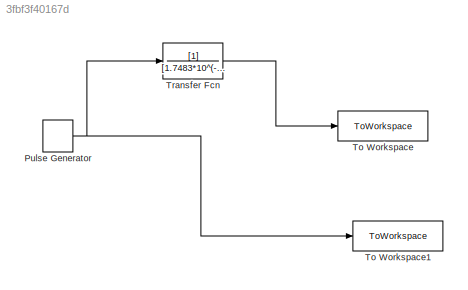
MODEL slx_3fbf3f40167d
KIND model
CONFIG AbsTol = auto
CONFIG EnableMultiTasking = off
CONFIG FixedStep = auto
CONFIG MaxStep = auto
CONFIG MinStep = auto
CONFIG RelTol = 1e-3
CONFIG SampleTimeConstraint = Unconstrained
CONFIG Solver = VariableStepAuto
CONFIG SolverName = VariableStepAuto
CONFIG StartTime = 0.0
CONFIG StopTime = T-1/Fe
BLOCK [DiscretePulseGenerator] Pulse Generator
  Period = 1/F1
  Ports = [0, 1]
  PulseType = Time based
  PulseWidth = 50
BLOCK [ToWorkspace] To Workspace
  FixptAsFi = on
  MaxDataPoints = inf
  Ports = [1]
  SampleTime = 1/Fe
  SaveFormat = Timeseries
  VariableName = Signal_C
BLOCK [ToWorkspace] To Workspace1
  FixptAsFi = on
  MaxDataPoints = inf
  Ports = [1]
  SampleTime = 1/Fe
  SaveFormat = Timeseries
  VariableName = Signal_CSF
BLOCK [TransferFcn] Transfer Fcn
  Denominator = [1.7483*10^(-23) 7.6663*10^(-18) 1.162*10^(-11) 3.0332*10^(-6) 1]
NET Pulse Generator:1 -> To Workspace1:1, Transfer Fcn:1
LINE Transfer Fcn:1 -> To Workspace:1
note: NET lines group one-source signal fan-out (src -> all destinations, sorted); 1:1 wires keep LINE
